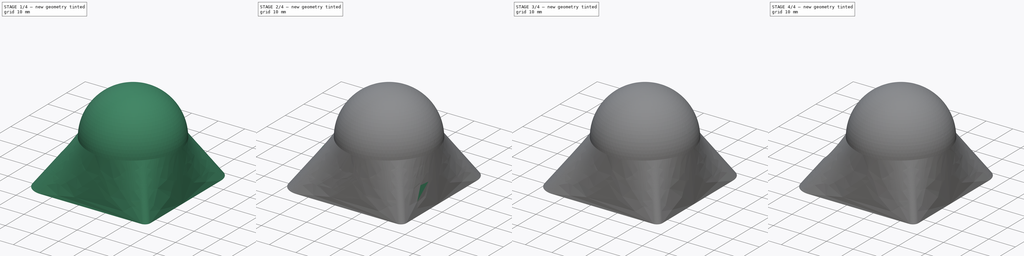
[diagram: build sequence overview — one tinted view per stage of 4, left to right]
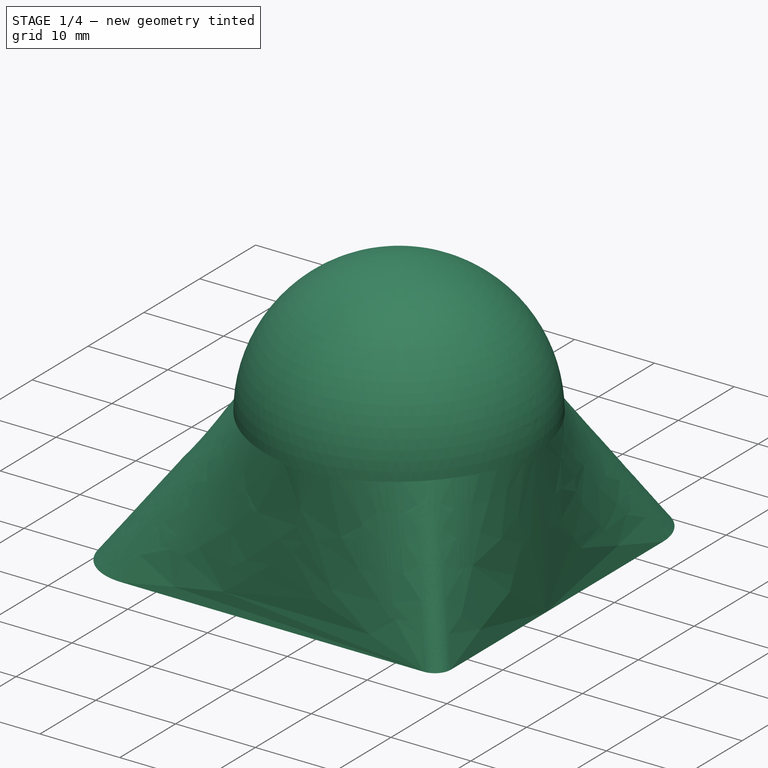
[diagram: stage 1 of 4 — iso view after this stage's code; geometry added in this stage tinted green]
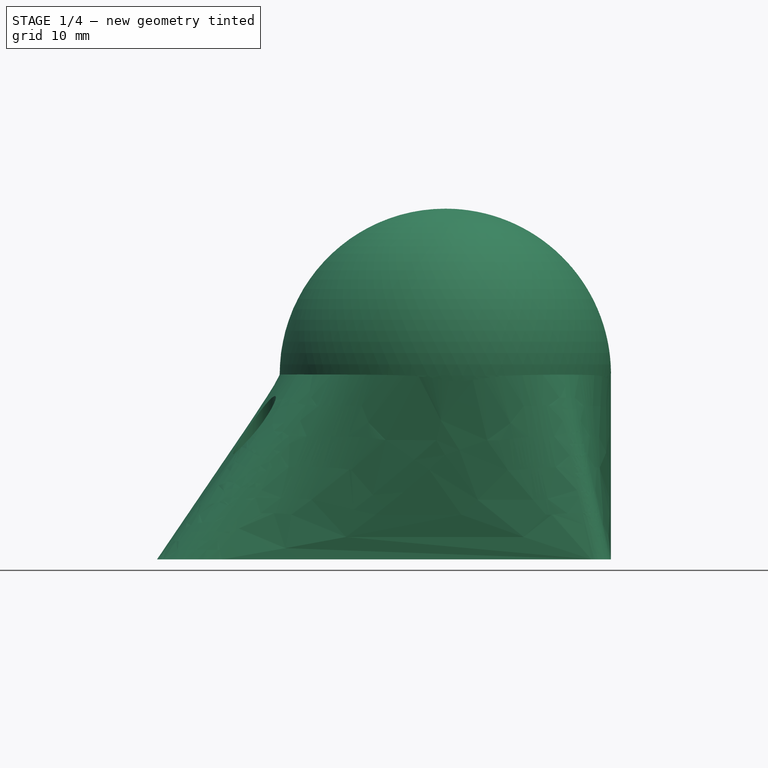
[diagram: stage 1 of 4 — front view after this stage's code; geometry added in this stage tinted green]
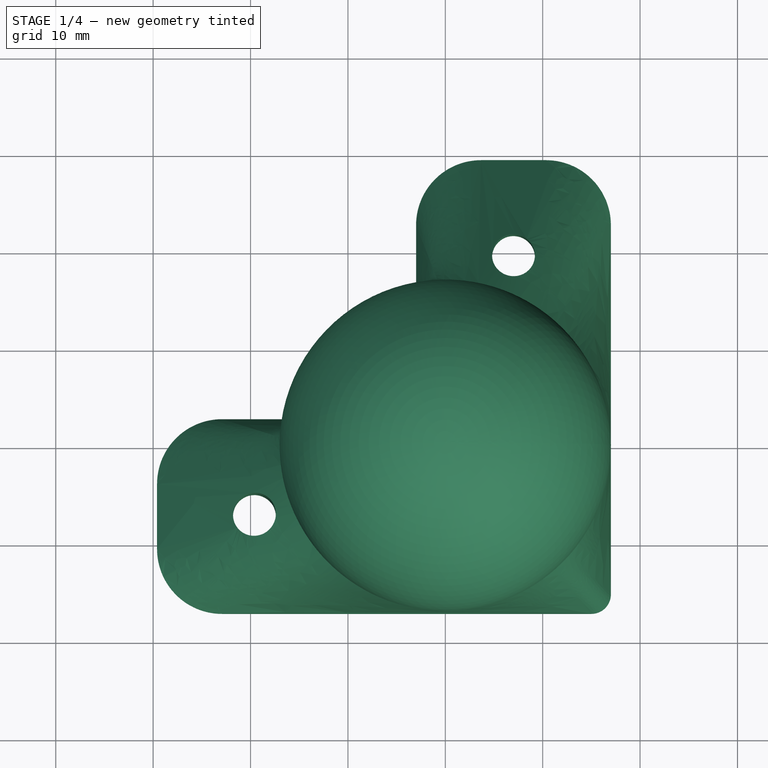
[diagram: stage 1 of 4 — top view after this stage's code; geometry added in this stage tinted green]
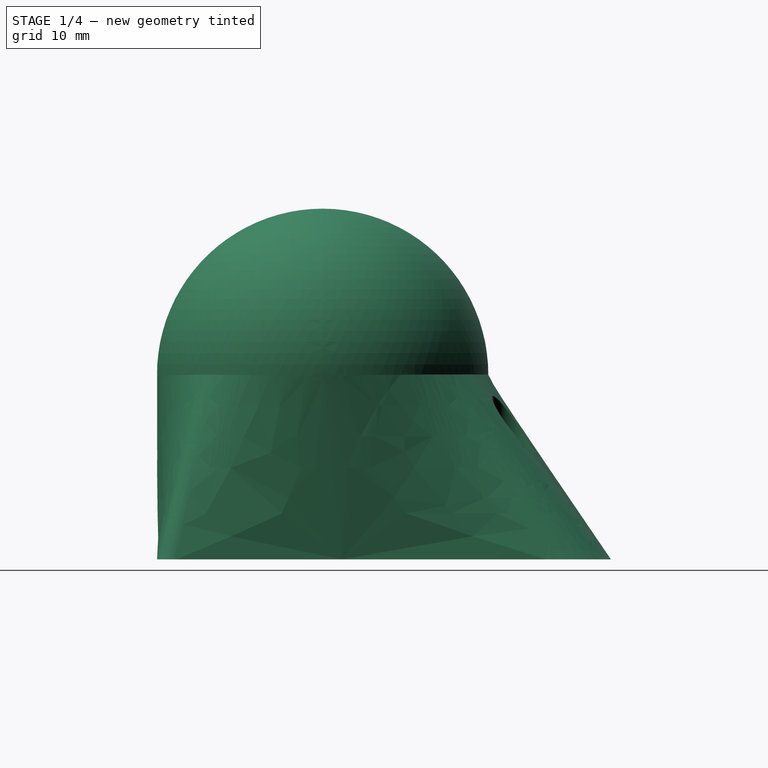
[diagram: stage 1 of 4 — right view after this stage's code; geometry added in this stage tinted green]
FCSTD DOCUMENT  (FreeCAD 0.21R33694 (Git))
Label: BallFoot
License: Creative Commons Attribution-NonCommercial-ShareAlike
LicenseURL: http://creativecommons.org/licenses/by-nc-sa/4.0/
objects: Sketcher::SketchObject×9, PartDesign::Pocket×4, PartDesign::Body×3, PartDesign::Plane×2, PartDesign::AdditiveLoft×2, PartDesign::AdditiveSphere×2, Spreadsheet::Sheet×1, PartDesign::SubtractiveCylinder×1, PartDesign::SubtractiveSphere×1, PartDesign::Fillet×1, PartDesign::Revolution×1
note: 38 computed .brp shape members not serialized (recipe doc carries the construction recipe); baked Part::Feature solids carry a one-line shape summary decoded from their .brp

FEATURE [PartDesign::Body] Body001  label="Plug"
  Group = -> [Sketch004,Revolution]
  Origin = -> Origin001
  Tip = -> Revolution
FEATURE [Sketcher::SketchObject] Sketch005  label="Base001"
  FullyConstrained = true
  MapMode = 5
  Support = -> [XY_Plane002]
  expr: Constraints[0] = <<Data>>.ProfileSize / 3
  expr: Constraints[11] = <<Data>>.ProfileSize
  expr: Constraints[27] = Spreadsheet.BaseSize
  expr: Constraints[30] = <<Data>>.BallRadius + <<Data>>.WallThickness
  sketch-geometry (13):
    g0: ArcOfCircle CenterX=-9.66667 CenterY=9.66667 CenterZ=0 NormalX=0 NormalY=0 NormalZ=1 AngleXU=0 Radius=6.66667 StartAngle=4.71239 EndAngle=6.28319
    g1: LineSegment StartX=-3 StartY=9.66667 StartZ=0 EndX=-3 EndY=22.9333 EndZ=0
    g2: ArcOfCircle CenterX=3.66667 CenterY=22.9333 CenterZ=0 NormalX=0 NormalY=0 NormalZ=1 AngleXU=0 Radius=6.66667 StartAngle=1.5708 EndAngle=3.14159
    g3: LineSegment StartX=3.66667 StartY=29.6 StartZ=0 EndX=10.3333 EndY=29.6 EndZ=0
    g4: ArcOfCircle CenterX=10.3333 CenterY=22.9333 CenterZ=0 NormalX=0 NormalY=0 NormalZ=1 AngleXU=0 Radius=6.66667 StartAngle=8e-16 EndAngle=1.5708
    g5: LineSegment StartX=17 StartY=22.9333 StartZ=0 EndX=17 EndY=-15 EndZ=0
    g6: ArcOfCircle CenterX=15 CenterY=-15 CenterZ=0 NormalX=0 NormalY=0 NormalZ=1 AngleXU=0 Radius=2 StartAngle=4.71239 EndAngle=6.28319
    g7: LineSegment StartX=15 StartY=-17 StartZ=0 EndX=-22.9333 EndY=-17 EndZ=0
    g8: ArcOfCircle CenterX=-22.9333 CenterY=-10.3333 CenterZ=0 NormalX=0 NormalY=0 NormalZ=1 AngleXU=0 Radius=6.66667 StartAngle=3.14159 EndAngle=4.71239
    g9: LineSegment StartX=-29.6 StartY=-10.3333 StartZ=0 EndX=-29.6 EndY=-3.66667 EndZ=0
    g10: ArcOfCircle CenterX=-22.9333 CenterY=-3.66667 CenterZ=0 NormalX=0 NormalY=0 NormalZ=1 AngleXU=0 Radius=6.66667 StartAngle=1.5708 EndAngle=3.14159
    g11: LineSegment StartX=-22.9333 StartY=3 StartZ=0 EndX=-9.66667 EndY=3 EndZ=0
    g12: Circle CenterX=0 CenterY=0 CenterZ=0 NormalX=0 NormalY=0 NormalZ=1 AngleXU=0 Radius=17
  constraints (32):
    c: Radius(g0) = 6.66667
    c: Vertical(g1)
    c: Tangent(g0,g1) = -1.5708
    c: Horizontal(g3)
    c: Tangent(g1,g2) = 1.5708
    c: Tangent(g2,g3) = 1.5708
    c: Equal(g0,g2)
    c: Vertical(g5)
    c: Tangent(g3,g4) = 1.5708
    c: Tangent(g4,g5) = 1.5708
    c: Equal(g2,g4)
    c: Distance(g4,g1) = 20
    c: Horizontal(g7)
    c: Tangent(g5,g6) = 1.5708
    c: Tangent(g6,g7) = 1.5708
    c: Radius(g6) = 2
    c: Vertical(g9)
    c: Horizontal(g11)
    c: Tangent(g7,g8) = 1.5708
    c: Tangent(g8,g9) = 1.5708
    c: Tangent(g9,g10) = 1.5708
    c: Tangent(g10,g11) = 1.5708
    c: Tangent(g11,g0) = -1.5708
    c: Equal(g4,g8)
    c: Equal(g8,g10)
    c: Equal(g3,g9)
    c: Equal(g5,g7)
    c: DistanceX(g8,g5) = 46.6
    c: Tangent(g12,g7)
    c: Tangent(g12,g5)
    c: Radius(g12) = 17
    c: Coincident(g12,g-1)  '__ANCHOR__'
FEATURE [Sketcher::SketchObject] Sketch006  label="Circle001"
  AttachmentOffset = pos=(0,0,19) rot=(0,0,1;0rad)
  ExternalGeometry = -> [Sketch005]
  FullyConstrained = true
  MapMode = 5
  Placement = pos=(0,0,19) rot=(0,0,1;0rad)
  Support = -> [XY_Plane002]
  expr: .AttachmentOffset.Base.z = Spreadsheet.BallRadius + Spreadsheet.WallThickness + Spreadsheet.ExtraHeight
  expr: Constraints[0] = <<Data>>.BallRadius + <<Data>>.WallThickness
  sketch-geometry (1):
    g0: Circle CenterX=-1.8e-15 CenterY=1.137e-13 CenterZ=0 NormalX=0 NormalY=0 NormalZ=1 AngleXU=0 Radius=17
  constraints (3):
    c: Radius(g0) = 17
    c: Tangent(g0,g-3)
    c: Tangent(g0,g-4)
FEATURE [PartDesign::AdditiveLoft] AdditiveLoft001
  Closed = false
  Profile = -> Sketch006
  Ruled = false
  Sections = -> [Sketch005]
FEATURE [PartDesign::Plane] DatumPlane001
  Length = 65.52
  MapMode = 2
  Placement = pos=(0,0,19) rot=(0,0,1;0rad)
  ResizeMode = 0
  Support = -> [Sketch006]
  Width = 65.52
FEATURE [Sketcher::SketchObject] Sketch007  label="Holes001"
  ExternalGeometry = -> [Sketch005]
  FullyConstrained = true
  MapMode = 5
  Support = -> [XY_Plane002]
  expr: Constraints[2] = <<Data>>.ScrewOffset
  expr: Constraints[9] = <<Data>>.M4Radius
  sketch-geometry (4):
    g0: LineSegment StartX=-29.6 StartY=-7 StartZ=0 EndX=-19.6 EndY=-7 EndZ=0
    g1: LineSegment StartX=7 StartY=29.6 StartZ=0 EndX=7 EndY=19.6 EndZ=0
    g2: Circle CenterX=7 CenterY=19.6 CenterZ=0 NormalX=0 NormalY=0 NormalZ=1 AngleXU=0 Radius=2.2
    g3: Circle CenterX=-19.6 CenterY=-7 CenterZ=0 NormalX=0 NormalY=0 NormalZ=1 AngleXU=0 Radius=2.2
  constraints (10):
    c: PointOnObject(g0,g-4)
    c: PointOnObject(g1,g-3)
    c: DistanceY(g1,g-3) = 10
    c: Symmetric(g-3,g-3,g1)
    c: Symmetric(g-4,g-4,g0)
    c: Equal(g0,g1)
    c: Coincident(g3,g0)
    c: Equal(g3,g2)
    c: Coincident(g1,g2)
    c: Radius(g2) = 2.2
FEATURE [Sketcher::SketchObject] Sketch008  label="ScrewHeads001"
  AttachmentOffset = pos=(0,0,3) rot=(0,0,1;0rad)
  ExternalGeometry = -> [Sketch005]
  FullyConstrained = true
  MapMode = 5
  Placement = pos=(0,0,3) rot=(0,0,1;0rad)
  Support = -> [XY_Plane002]
  expr: .AttachmentOffset.Base.z = Spreadsheet.ScrewHeadGap
  expr: Constraints[2] = Spreadsheet.ScrewOffset
  expr: Constraints[9] = <<Data>>.M4HeadRadius
  sketch-geometry (4):
    g0: LineSegment StartX=-29.6 StartY=-7 StartZ=0 EndX=-19.6 EndY=-7 EndZ=0
    g1: LineSegment StartX=7 StartY=29.6 StartZ=0 EndX=7 EndY=19.6 EndZ=0
    g2: Circle CenterX=7 CenterY=19.6 CenterZ=0 NormalX=0 NormalY=0 NormalZ=1 AngleXU=0 Radius=3.8
    g3: Circle CenterX=-19.6 CenterY=-7 CenterZ=0 NormalX=0 NormalY=0 NormalZ=1 AngleXU=0 Radius=3.8
  constraints (10):
    c: PointOnObject(g0,g-4)
    c: PointOnObject(g1,g-3)
    c: DistanceY(g1,g-3) = 10
    c: Symmetric(g-3,g-3,g1)
    c: Symmetric(g-4,g-4,g0)
    c: Equal(g0,g1)
    c: Coincident(g3,g0)
    c: Equal(g3,g2)
    c: Coincident(g1,g2)
    c: Radius(g2) = 3.8
FEATURE [PartDesign::AdditiveSphere] Sphere002
  Angle1 = -90
  Angle2 = 90
  Angle3 = 360
  AttacherType = Attacher::AttachEngine3D
  BaseFeature = -> AdditiveLoft001
  MapMode = 5
  Placement = pos=(0,0,19) rot=(0,0,1;0rad)
  Radius = 17.01
  Support = -> [DatumPlane001]
  expr: Radius = <<Data>>.BallRadius + <<Data>>.WallThickness + 0.01 mm
FEATURE [PartDesign::Pocket] Pocket002  label="Holes_001"
  BaseFeature = -> Sphere002
  Direction = (0,0,-1)
  Length = 5
  Length2 = 100
  Placement = pos=(0,0,19) rot=(0,0,1;0rad)
  Profile = -> Sketch007
  Reversed = true
  Type = 1
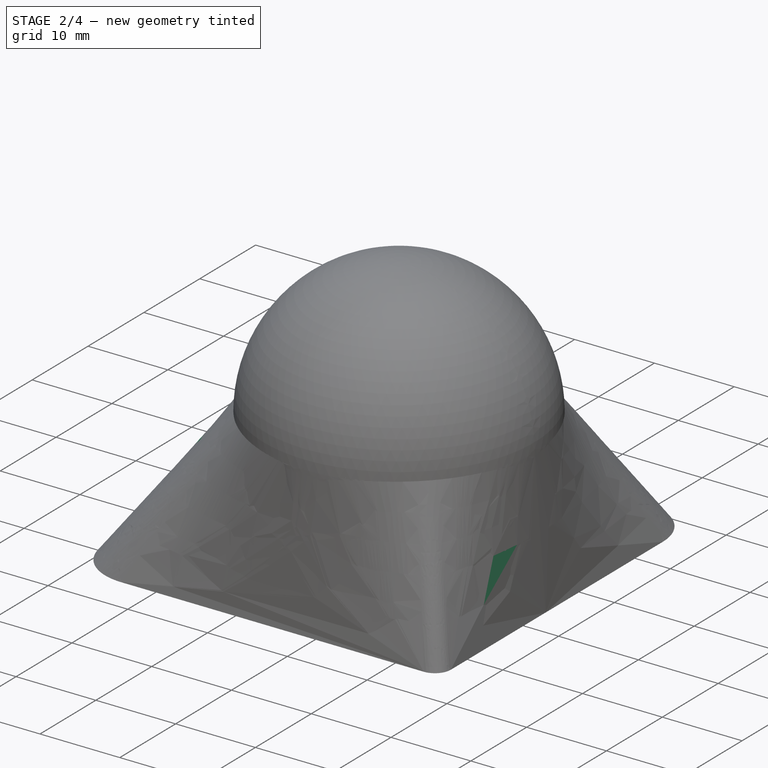
[diagram: stage 2 of 4 — iso view after this stage's code; geometry added in this stage tinted green]
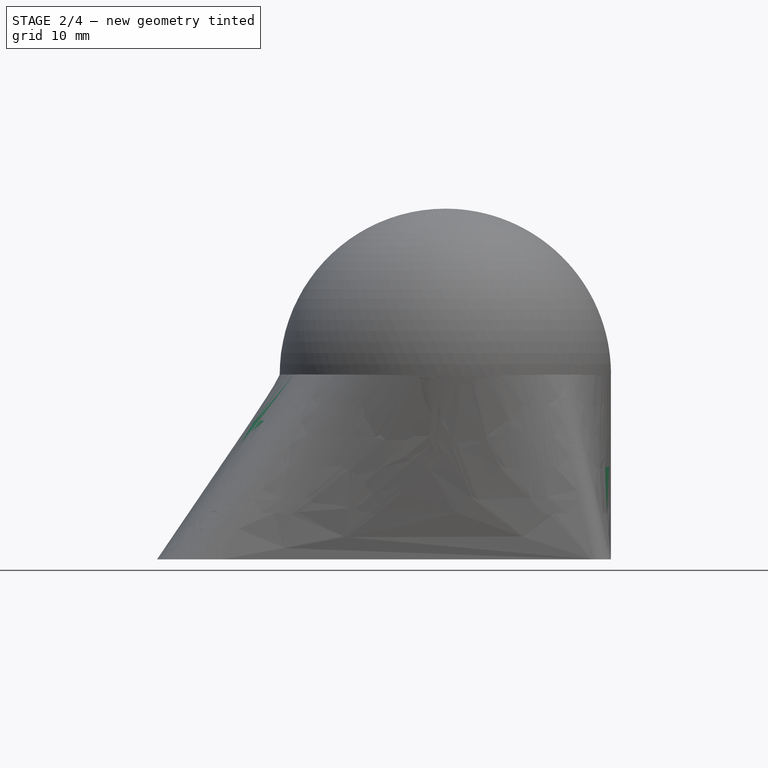
[diagram: stage 2 of 4 — front view after this stage's code; geometry added in this stage tinted green]
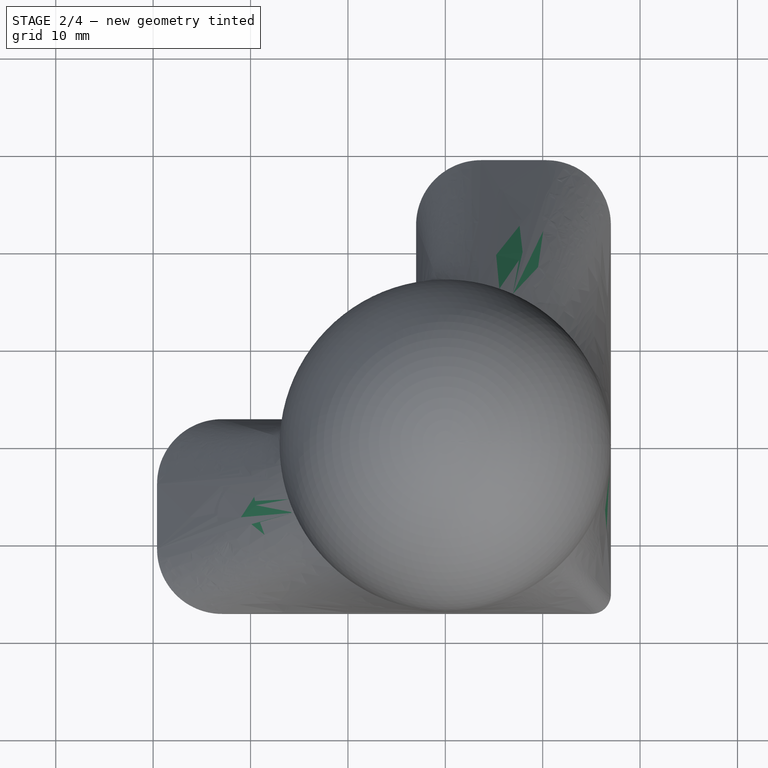
[diagram: stage 2 of 4 — top view after this stage's code; geometry added in this stage tinted green]
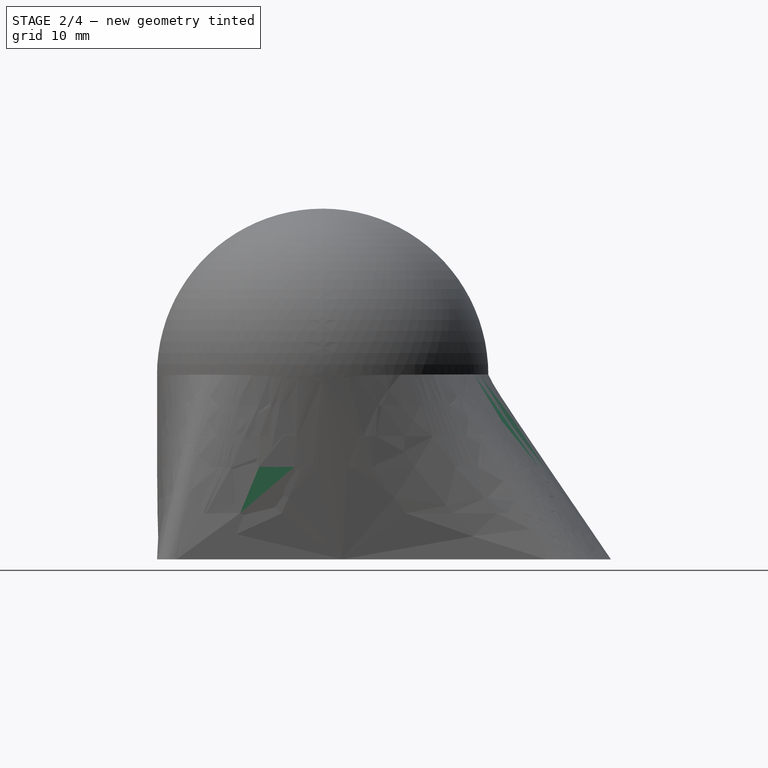
[diagram: stage 2 of 4 — right view after this stage's code; geometry added in this stage tinted green]
FEATURE [Spreadsheet::Sheet] Spreadsheet  label="Data"
  cells = B2='M4Radius; C2(M4Radius)==2.2 mm; B3='M4HeadRadius; C3(M4HeadRadius)==3.8 mm; B5='BallRadius; C5(BallRadius)==15 mm; B6='WallThickness; C6(WallThickness)==2 mm; B7='ExtraHeight; C7(ExtraHeight)==2 mm; B8='Cover_%; C8(Cover)=36; B9='BaseSizeExtra; C9(BaseSizeExtra)==12.6 mm; B10='ProfileSize; C10(ProfileSize)==20 mm; B11='OuterCormerRadius; C11(OuterCormerRadius)==1 mm; B12='InnerCornerRadius; C12(InnerCornerRadius)==7.5 mm; B13='ScrewOffset; C13(ScrewOffset)==10 mm; B14='ScrewHeadGap; C14(ScrewHeadGap)==3 mm; B15='Assymetric; C15(Assymetric)=1; B17='TotalHeight; C17(TotalHeight)==BallRadius * Cover / 100 + BallRadius + WallThickness + ExtraHeight; B18='BaseSize; C18(BaseSize)==(BallRadius + WallThickness) * 2 + BaseSizeExtra
FEATURE [Sketcher::SketchObject] Sketch  label="Base"
  FullyConstrained = true
  MapMode = 5
  Support = -> [XY_Plane]
  expr: Constraints[0] = <<Data>>.ProfileSize / 3
  expr: Constraints[11] = <<Data>>.ProfileSize
  expr: Constraints[27] = Spreadsheet.BaseSize
  expr: Constraints[30] = <<Data>>.BallRadius + <<Data>>.WallThickness
  sketch-geometry (13):
    g0: ArcOfCircle CenterX=-9.66667 CenterY=9.66667 CenterZ=0 NormalX=0 NormalY=0 NormalZ=1 AngleXU=0 Radius=6.66667 StartAngle=4.71239 EndAngle=6.28319
    g1: LineSegment StartX=-3 StartY=9.66667 StartZ=0 EndX=-3 EndY=22.9333 EndZ=0
    g2: ArcOfCircle CenterX=3.66667 CenterY=22.9333 CenterZ=0 NormalX=0 NormalY=0 NormalZ=1 AngleXU=0 Radius=6.66667 StartAngle=1.5708 EndAngle=3.14159
    g3: LineSegment StartX=3.66667 StartY=29.6 StartZ=0 EndX=10.3333 EndY=29.6 EndZ=0
    g4: ArcOfCircle CenterX=10.3333 CenterY=22.9333 CenterZ=0 NormalX=0 NormalY=0 NormalZ=1 AngleXU=0 Radius=6.66667 StartAngle=8e-16 EndAngle=1.5708
    g5: LineSegment StartX=17 StartY=22.9333 StartZ=0 EndX=17 EndY=-15 EndZ=0
    g6: ArcOfCircle CenterX=15 CenterY=-15 CenterZ=0 NormalX=0 NormalY=0 NormalZ=1 AngleXU=0 Radius=2 StartAngle=4.71239 EndAngle=6.28319
    g7: LineSegment StartX=15 StartY=-17 StartZ=0 EndX=-22.9333 EndY=-17 EndZ=0
    g8: ArcOfCircle CenterX=-22.9333 CenterY=-10.3333 CenterZ=0 NormalX=0 NormalY=0 NormalZ=1 AngleXU=0 Radius=6.66667 StartAngle=3.14159 EndAngle=4.71239
    g9: LineSegment StartX=-29.6 StartY=-10.3333 StartZ=0 EndX=-29.6 EndY=-3.66667 EndZ=0
    g10: ArcOfCircle CenterX=-22.9333 CenterY=-3.66667 CenterZ=0 NormalX=0 NormalY=0 NormalZ=1 AngleXU=0 Radius=6.66667 StartAngle=1.5708 EndAngle=3.14159
    g11: LineSegment StartX=-22.9333 StartY=3 StartZ=0 EndX=-9.66667 EndY=3 EndZ=0
    g12: Circle CenterX=0 CenterY=0 CenterZ=0 NormalX=0 NormalY=0 NormalZ=1 AngleXU=0 Radius=17
  constraints (32):
    c: Radius(g0) = 6.66667
    c: Vertical(g1)
    c: Tangent(g0,g1) = -1.5708
    c: Horizontal(g3)
    c: Tangent(g1,g2) = 1.5708
    c: Tangent(g2,g3) = 1.5708
    c: Equal(g0,g2)
    c: Vertical(g5)
    c: Tangent(g3,g4) = 1.5708
    c: Tangent(g4,g5) = 1.5708
    c: Equal(g2,g4)
    c: Distance(g4,g1) = 20
    c: Horizontal(g7)
    c: Tangent(g5,g6) = 1.5708
    c: Tangent(g6,g7) = 1.5708
    c: Radius(g6) = 2
    c: Vertical(g9)
    c: Horizontal(g11)
    c: Tangent(g7,g8) = 1.5708
    c: Tangent(g8,g9) = 1.5708
    c: Tangent(g9,g10) = 1.5708
    c: Tangent(g10,g11) = 1.5708
    c: Tangent(g11,g0) = -1.5708
    c: Equal(g4,g8)
    c: Equal(g8,g10)
    c: Equal(g3,g9)
    c: Equal(g5,g7)
    c: DistanceX(g8,g5) = 46.6
    c: Tangent(g12,g7)
    c: Tangent(g12,g5)
    c: Radius(g12) = 17
    c: Coincident(g12,g-1)  '__ANCHOR__'
FEATURE [Sketcher::SketchObject] Sketch001  label="Circle"
  AttachmentOffset = pos=(0,0,19) rot=(0,0,1;0rad)
  ExternalGeometry = -> [Sketch]
  FullyConstrained = true
  MapMode = 5
  Placement = pos=(0,0,19) rot=(0,0,1;0rad)
  Support = -> [XY_Plane]
  expr: .AttachmentOffset.Base.z = Spreadsheet.BallRadius + Spreadsheet.WallThickness + Spreadsheet.ExtraHeight
  expr: Constraints[0] = <<Data>>.BallRadius + <<Data>>.WallThickness
  sketch-geometry (1):
    g0: Circle CenterX=-1.8e-15 CenterY=1.137e-13 CenterZ=0 NormalX=0 NormalY=0 NormalZ=1 AngleXU=0 Radius=17
  constraints (3):
    c: Radius(g0) = 17
    c: Tangent(g0,g-3)
    c: Tangent(g0,g-4)
FEATURE [PartDesign::Plane] DatumPlane
  Length = 65.52
  MapMode = 2
  Placement = pos=(0,0,19) rot=(0,0,1;0rad)
  ResizeMode = 0
  Support = -> [Sketch001]
  Width = 65.52
FEATURE [Sketcher::SketchObject] Sketch002  label="Holes"
  ExternalGeometry = -> [Sketch]
  FullyConstrained = true
  MapMode = 5
  Support = -> [XY_Plane]
  expr: Constraints[11] = <<Data>>.M4HeadRadius
  expr: Constraints[2] = <<Data>>.ScrewOffset
  expr: Constraints[9] = <<Data>>.M4Radius
  sketch-geometry (5):
    g0: LineSegment StartX=-29.6 StartY=-7 StartZ=0 EndX=-19.6 EndY=-7 EndZ=0
    g1: LineSegment StartX=7 StartY=29.6 StartZ=0 EndX=7 EndY=19.6 EndZ=0
    g2: Circle CenterX=7 CenterY=19.6 CenterZ=0 NormalX=0 NormalY=0 NormalZ=1 AngleXU=0 Radius=2.2
    g3: Circle CenterX=-19.6 CenterY=-7 CenterZ=0 NormalX=0 NormalY=0 NormalZ=1 AngleXU=0 Radius=2.2
    g4: Circle CenterX=0 CenterY=0 CenterZ=0 NormalX=0 NormalY=0 NormalZ=1 AngleXU=0 Radius=3.8
  constraints (12):
    c: PointOnObject(g0,g-4)
    c: PointOnObject(g1,g-3)
    c: DistanceY(g1,g-3) = 10
    c: Symmetric(g-3,g-3,g1)
    c: Symmetric(g-4,g-4,g0)
    c: Equal(g0,g1)
    c: Coincident(g3,g0)
    c: Equal(g3,g2)
    c: Coincident(g1,g2)
    c: Radius(g2) = 2.2
    c: Coincident(g4,g-1)
    c: Radius(g4) = 3.8
FEATURE [Sketcher::SketchObject] Sketch003  label="ScrewHeads"
  AttachmentOffset = pos=(0,0,3) rot=(0,0,1;0rad)
  ExternalGeometry = -> [Sketch]
  FullyConstrained = true
  MapMode = 5
  Placement = pos=(0,0,3) rot=(0,0,1;0rad)
  Support = -> [XY_Plane]
  expr: .AttachmentOffset.Base.z = Spreadsheet.ScrewHeadGap
  expr: Constraints[2] = Spreadsheet.ScrewOffset
  expr: Constraints[9] = <<Data>>.M4HeadRadius
  sketch-geometry (4):
    g0: LineSegment StartX=-29.6 StartY=-7 StartZ=0 EndX=-19.6 EndY=-7 EndZ=0
    g1: LineSegment StartX=7 StartY=29.6 StartZ=0 EndX=7 EndY=19.6 EndZ=0
    g2: Circle CenterX=7 CenterY=19.6 CenterZ=0 NormalX=0 NormalY=0 NormalZ=1 AngleXU=0 Radius=3.8
    g3: Circle CenterX=-19.6 CenterY=-7 CenterZ=0 NormalX=0 NormalY=0 NormalZ=1 AngleXU=0 Radius=3.8
  constraints (10):
    c: PointOnObject(g0,g-4)
    c: PointOnObject(g1,g-3)
    c: DistanceY(g1,g-3) = 10
    c: Symmetric(g-3,g-3,g1)
    c: Symmetric(g-4,g-4,g0)
    c: Equal(g0,g1)
    c: Coincident(g3,g0)
    c: Equal(g3,g2)
    c: Coincident(g1,g2)
    c: Radius(g2) = 3.8
FEATURE [PartDesign::AdditiveLoft] AdditiveLoft
  Closed = false
  Profile = -> Sketch001
  Ruled = false
  Sections = -> [Sketch]
FEATURE [PartDesign::Body] Body
  Group = -> [DatumPlane,AdditiveLoft,Sketch,Sketch001,Sphere,Cylinder,Sphere001,Fillet,Sketch002,Pocket,Sketch003,Pocket001]
  Origin = -> Origin
  Tip = -> Pocket001
FEATURE [Sketcher::SketchObject] Sketch004
  FullyConstrained = true
  MapMode = 5
  Placement = pos=(0,0,0) rot=(1,0,0;1.5708rad)
  Support = -> [XZ_Plane001]
  expr: Constraints[0] = <<Data>>.BallRadius
  expr: Constraints[29] = .Constraints.R + 0.1 mm
  sketch-geometry (10):
    g0: Circle CenterX=0 CenterY=15 CenterZ=0 NormalX=0 NormalY=0 NormalZ=1 AngleXU=0 Radius=15
    g1: LineSegment StartX=0 StartY=30 StartZ=0 EndX=0 EndY=0 EndZ=0
    g2: LineSegment StartX=-14.3 StartY=10.4712 StartZ=0 EndX=0 EndY=10.4712 EndZ=0
    g3: LineSegment StartX=0 StartY=0 StartZ=0 EndX=-16.3857 EndY=0 EndZ=0
    g4: LineSegment StartX=-16.3857 StartY=0 StartZ=0 EndX=-16.3857 EndY=10.4712 EndZ=0
    g5: LineSegment StartX=-16.3857 StartY=10.4712 StartZ=0 EndX=-14.3 EndY=10.4712 EndZ=0
    g6: LineSegment StartX=-14.3 StartY=10.4712 StartZ=0 EndX=-14.2 EndY=12.5545 EndZ=0
    g7: LineSegment StartX=-14.2 StartY=12.5545 StartZ=0 EndX=0 EndY=12.5545 EndZ=0
    g8: LineSegment StartX=0 StartY=12.5545 StartZ=0 EndX=0 EndY=0 EndZ=0
    g9: LineSegment StartX=-14.4579 StartY=11.004 StartZ=0 EndX=-16.3857 EndY=10.4712 EndZ=0
  constraints (30):
    c: Radius(g0) = 15
    c: PointOnObject(g1,g0)
    c: PointOnObject(g1,g0)
    c: Vertical(g1)
    c: PointOnObject(g0,g1)
    c: PointOnObject(g2,g0)
    c: PointOnObject(g2,g1)
    c: Horizontal(g2)
    c: Coincident(g3,g1)
    c: Horizontal(g3)
    c: Coincident(g4,g3)
    c: Vertical(g4)
    c: Coincident(g5,g4)
    c: Coincident(g5,g2)
    c: Horizontal(g5)
    c: Coincident(g6,g5)
    c: Coincident(g7,g6)
    c: PointOnObject(g7,g1)
    c: Horizontal(g7)
    c: Coincident(g8,g7)
    c: Coincident(g8,g3)
    c: PointOnObject(g0,g9)
    c: Distance(g9) = 2
    c: Coincident(g9,g4)
    c: PointOnObject(g9,g0)
    c: Equal(g5,g6)
    c: Coincident(g3,g-1)  '__ANCHOR__'
    c: DistanceX(g3,g3) = 16.3857
    c: DistanceX(g7,g7) = 14.2  'R'
    c: DistanceX(g2,g2) = 14.3
FEATURE [PartDesign::Revolution] Revolution
  Angle = 360
  Axis = (0,-2e-16,1)
  Base = (0,0,0)
  Placement = pos=(0,0,0) rot=(1,0,0;1.5708rad)
  Profile = -> Sketch004
  ReferenceAxis = -> Sketch004 [V_Axis]
FEATURE [PartDesign::Pocket] Pocket003  label="ScrewHeads_001"
  BaseFeature = -> Pocket002
  Direction = (0,0,-1)
  Length = 5
  Length2 = 100
  Placement = pos=(0,0,19) rot=(0,0,1;0rad)
  Profile = -> Sketch008
  Reversed = true
  Type = 1
FEATURE [PartDesign::Body] Body002  label="TPU"
  Group = -> [DatumPlane001,AdditiveLoft001,Sketch005,Sketch006,Sphere002,Sketch007,Pocket002,Sketch008,Pocket003]
  Origin = -> Origin002
  Tip = -> Pocket003
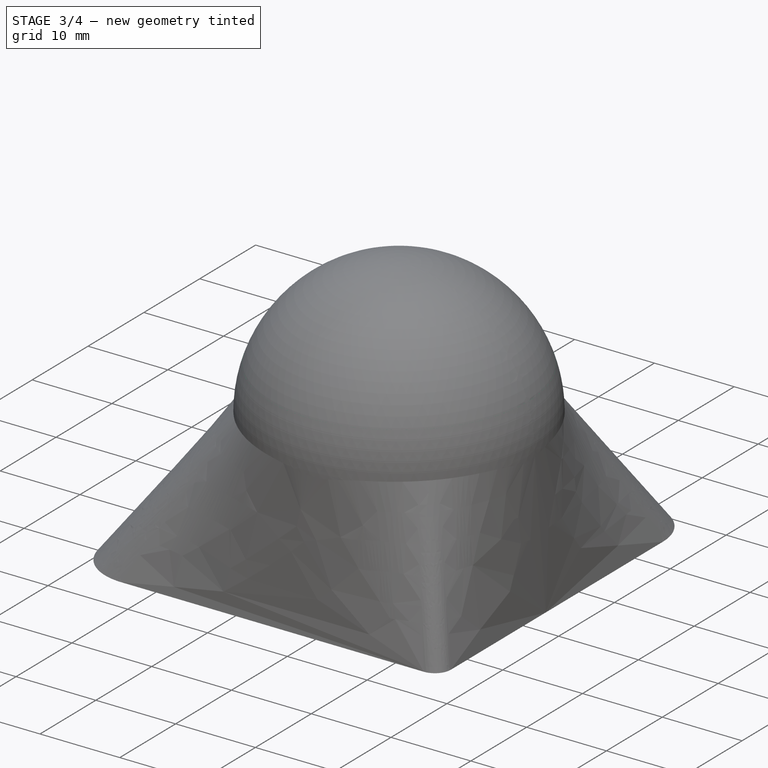
[diagram: stage 3 of 4 — iso view after this stage's code; geometry added in this stage tinted green]
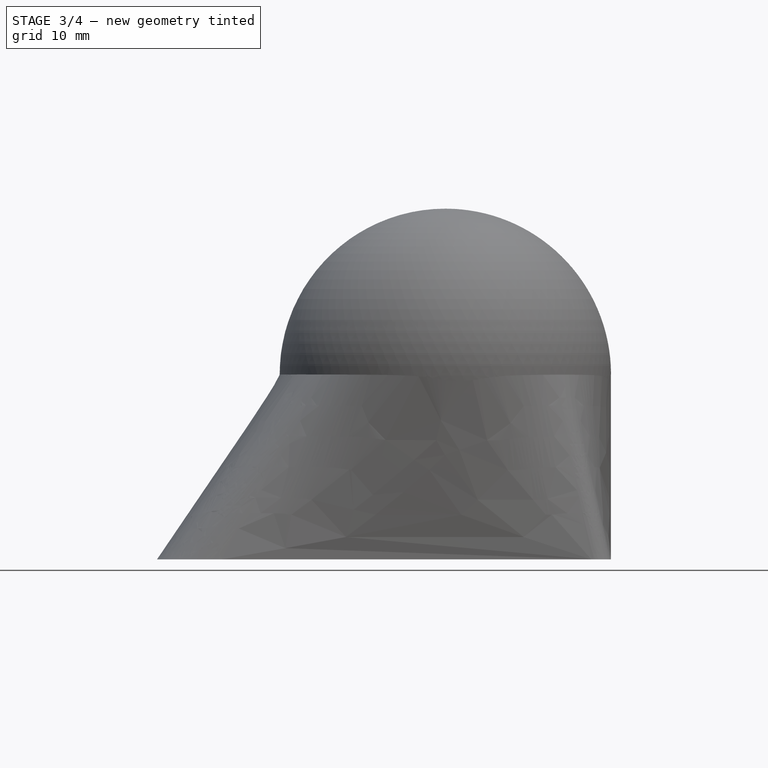
[diagram: stage 3 of 4 — front view after this stage's code; geometry added in this stage tinted green]
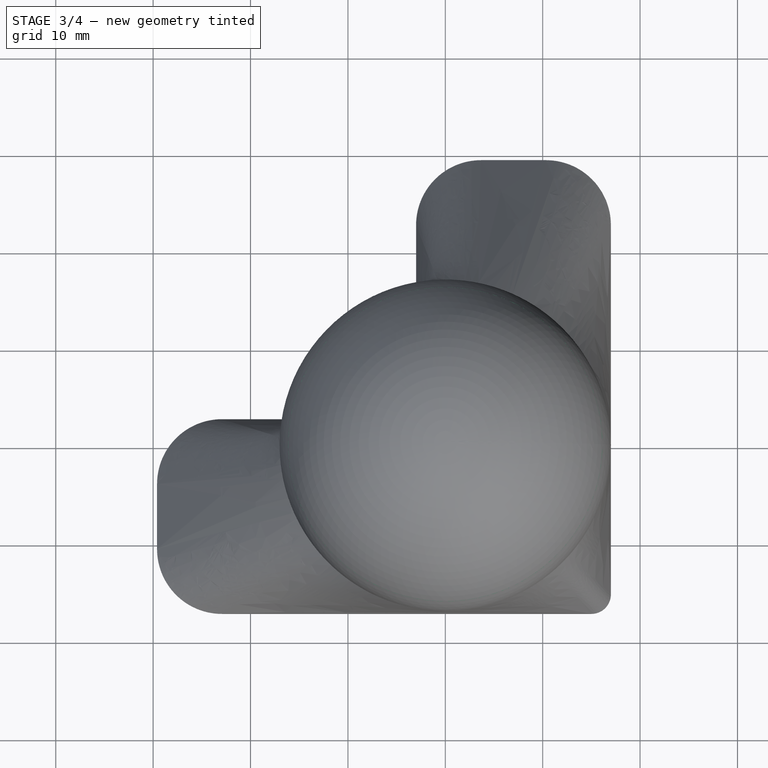
[diagram: stage 3 of 4 — top view after this stage's code; geometry added in this stage tinted green]
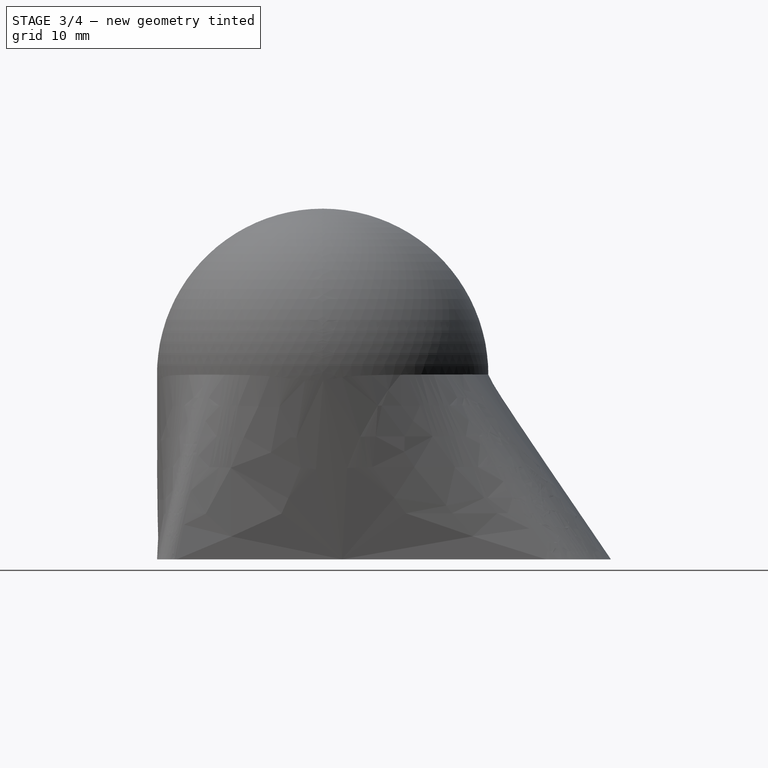
[diagram: stage 3 of 4 — right view after this stage's code; geometry added in this stage tinted green]
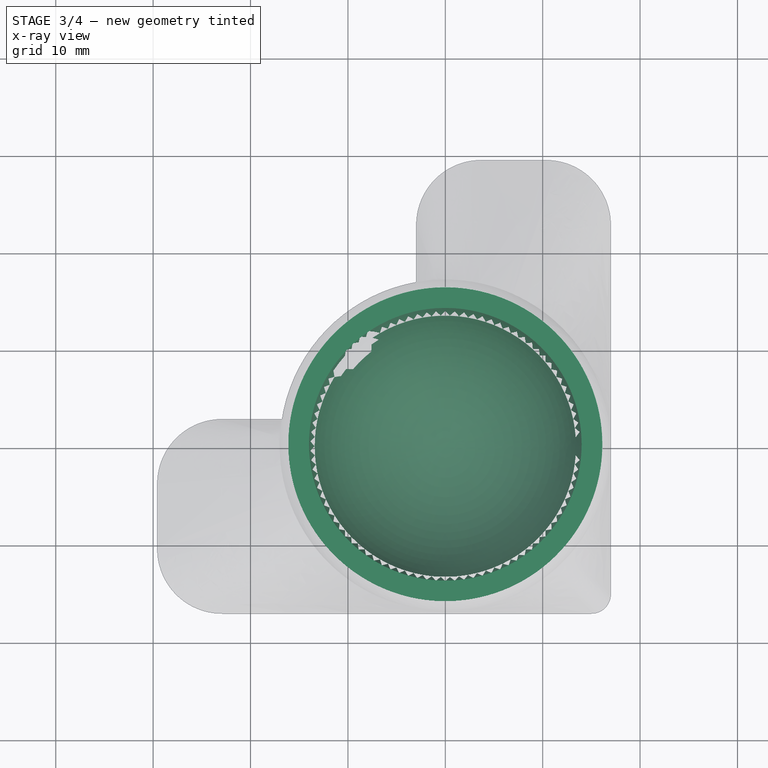
[diagram: stage 3 of 4 — x-ray composite at the top view; earlier geometry ghosted, this stage's added geometry solid]
FEATURE [PartDesign::AdditiveSphere] Sphere
  Angle1 = -90
  Angle2 = 90
  Angle3 = 360
  AttacherType = Attacher::AttachEngine3D
  BaseFeature = -> AdditiveLoft
  MapMode = 5
  Placement = pos=(0,0,19) rot=(0,0,1;0rad)
  Radius = 17.01
  Support = -> [DatumPlane]
  expr: Radius = <<Data>>.BallRadius + <<Data>>.WallThickness + 0.01 mm
FEATURE [PartDesign::SubtractiveCylinder] Cylinder
  Angle = 360
  AttacherType = Attacher::AttachEngine3D
  AttachmentOffset = pos=(0,0,5.4) rot=(0,0,1;0rad)
  BaseFeature = -> Sphere
  FirstAngle = 0
  Height = 17.01
  MapMode = 5
  Placement = pos=(0,0,24.4) rot=(0,0,1;0rad)
  Radius = 17.01
  SecondAngle = 0
  Support = -> [DatumPlane]
  expr: .AttachmentOffset.Base.z = <<Data>>.BallRadius * <<Data>>.Cover / 100
  expr: Height = Sphere.Radius
  expr: Radius = Sphere.Radius
FEATURE [PartDesign::SubtractiveSphere] Sphere001  label="Cavity"
  Angle1 = -90
  Angle2 = 90
  Angle3 = 360
  AttacherType = Attacher::AttachEngine3D
  BaseFeature = -> Cylinder
  MapMode = 5
  Placement = pos=(0,0,19) rot=(0,0,1;0rad)
  Radius = 15
  Support = -> [DatumPlane]
  expr: Radius = <<Data>>.BallRadius
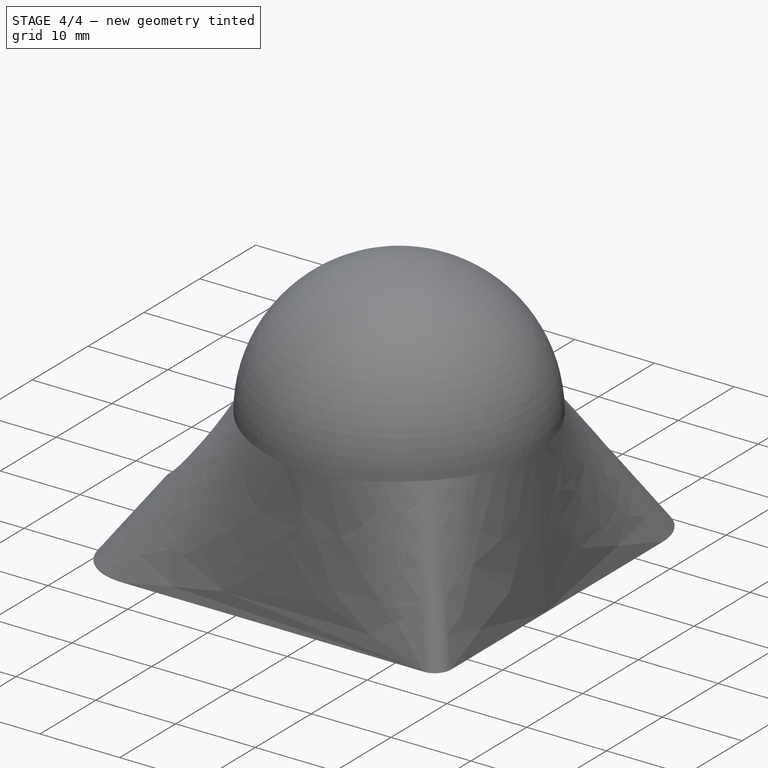
[diagram: stage 4 of 4 — iso view after this stage's code; geometry added in this stage tinted green]
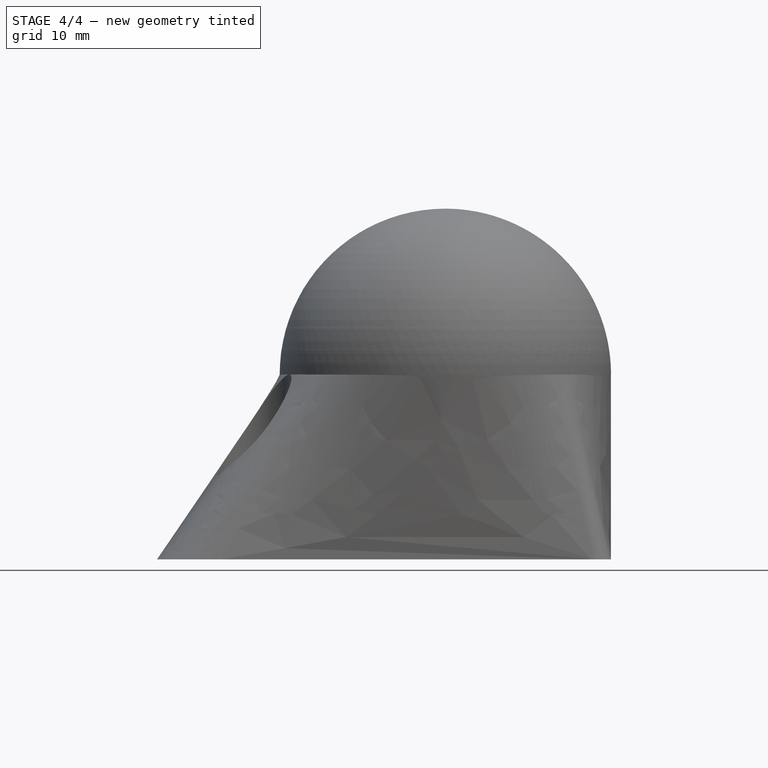
[diagram: stage 4 of 4 — front view after this stage's code; geometry added in this stage tinted green]
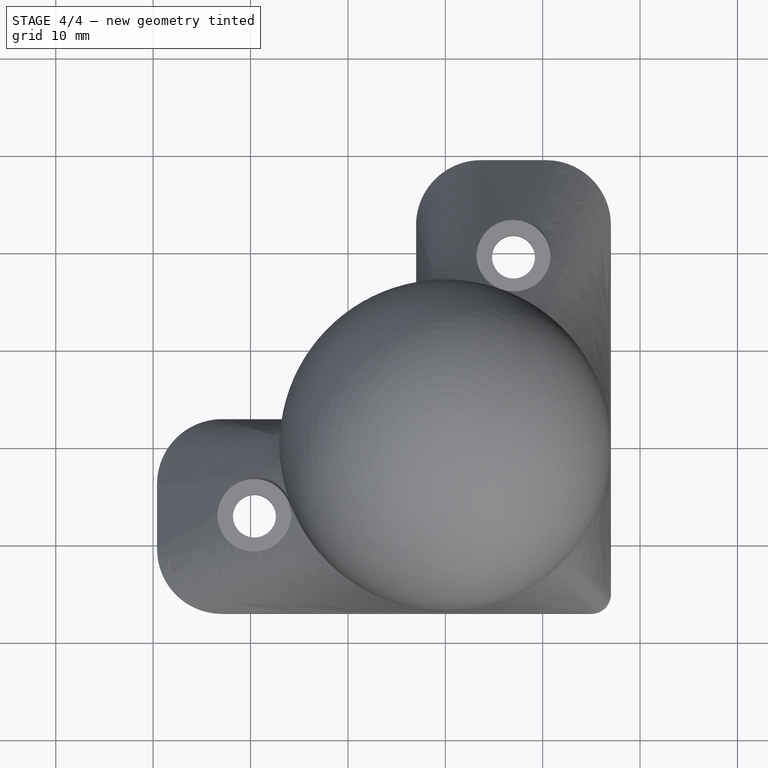
[diagram: stage 4 of 4 — top view after this stage's code; geometry added in this stage tinted green]
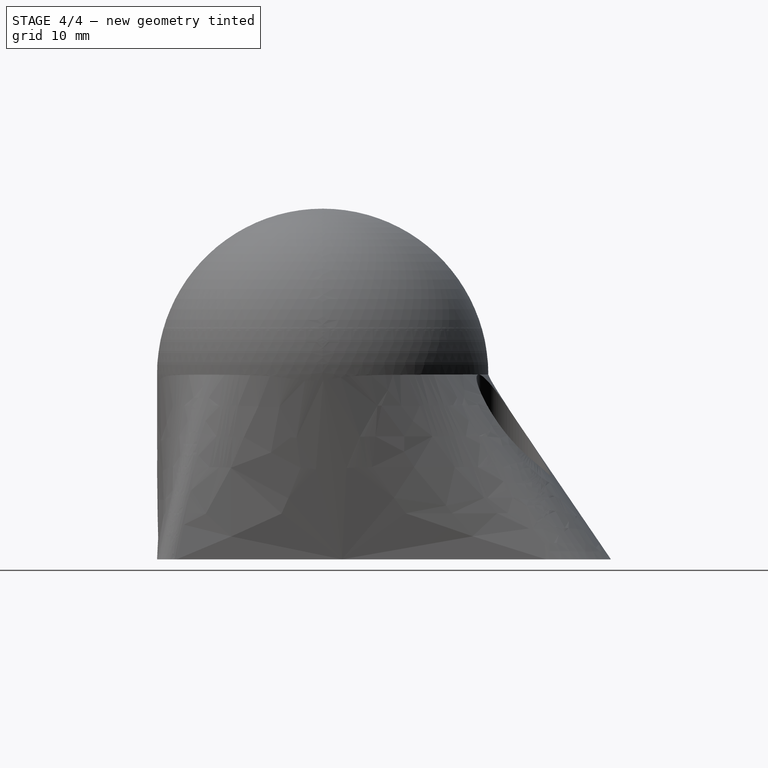
[diagram: stage 4 of 4 — right view after this stage's code; geometry added in this stage tinted green]
FEATURE [PartDesign::Fillet] Fillet
  Base = -> Sphere001 [Face16]
  BaseFeature = -> Sphere001
  Placement = pos=(0,0,19) rot=(0,0,1;0rad)
  Radius = 1
  SupportTransform = false
  UseAllEdges = false
FEATURE [PartDesign::Pocket] Pocket  label="Holes_"
  BaseFeature = -> Fillet
  Direction = (1,1,1)
  Length = 5
  Length2 = 100
  Placement = pos=(0,0,19) rot=(0,0,1;0rad)
  Profile = -> Sketch002
  Reversed = true
  Type = 1
FEATURE [PartDesign::Pocket] Pocket001  label="ScrewHeads_"
  BaseFeature = -> Pocket
  Direction = (1,1,1)
  Length = 5
  Length2 = 100
  Placement = pos=(0,0,19) rot=(0,0,1;0rad)
  Profile = -> Sketch003
  Reversed = true
  Type = 1
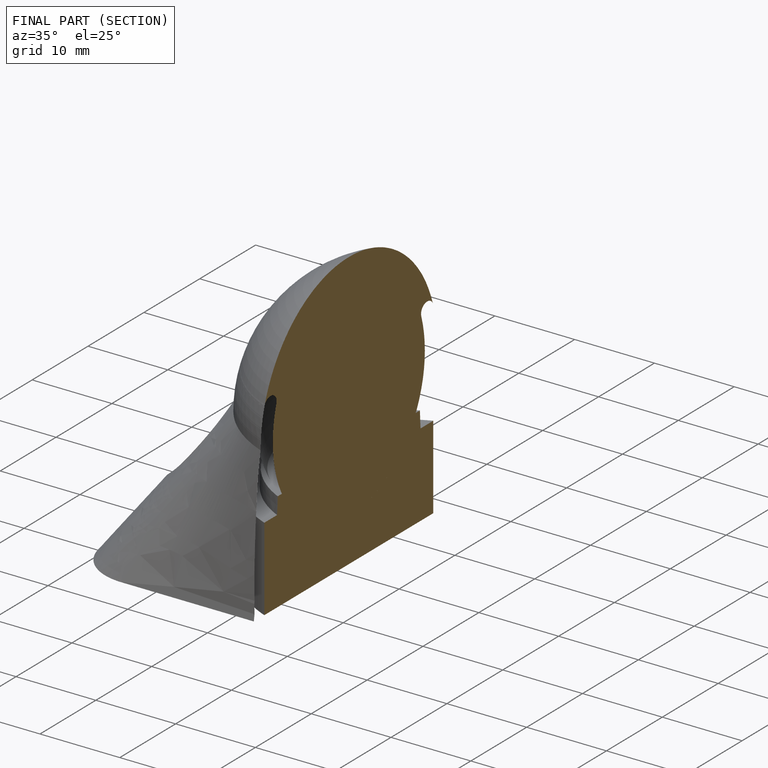
[diagram: finished part — half-section view (interior)]
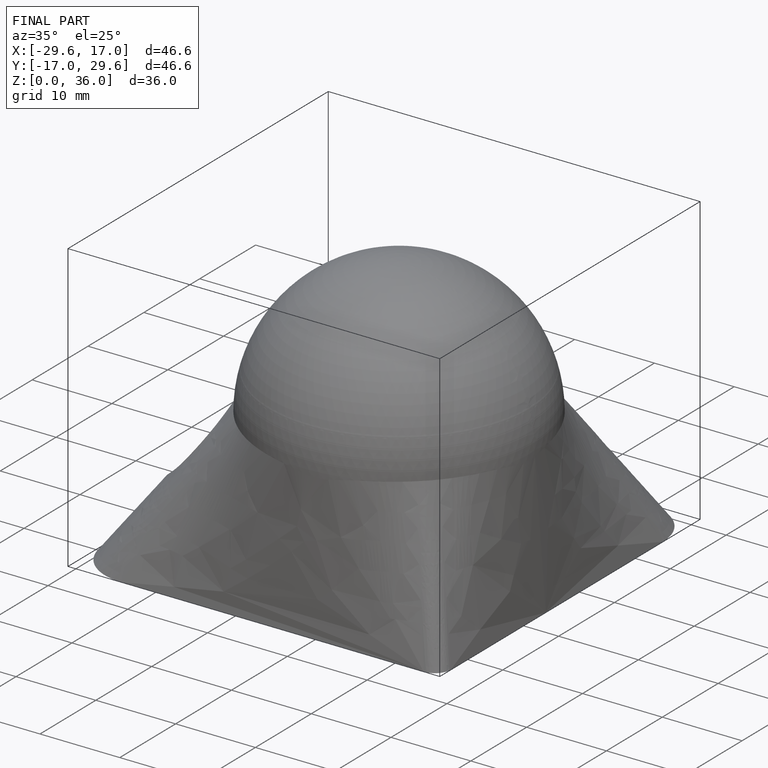
[diagram: finished part — iso view with bounding-box wireframe]
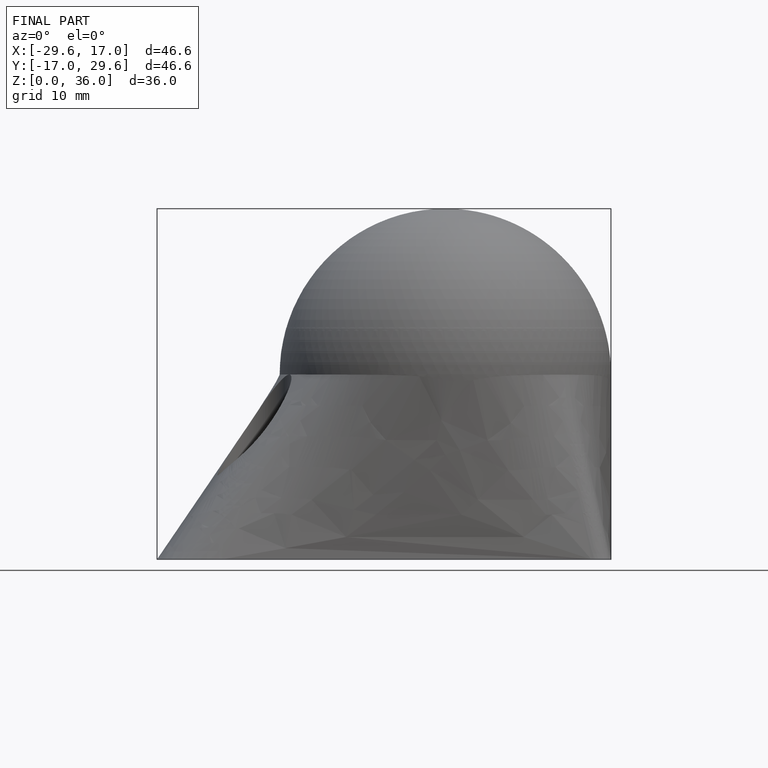
[diagram: finished part — front view with bounding-box wireframe]
